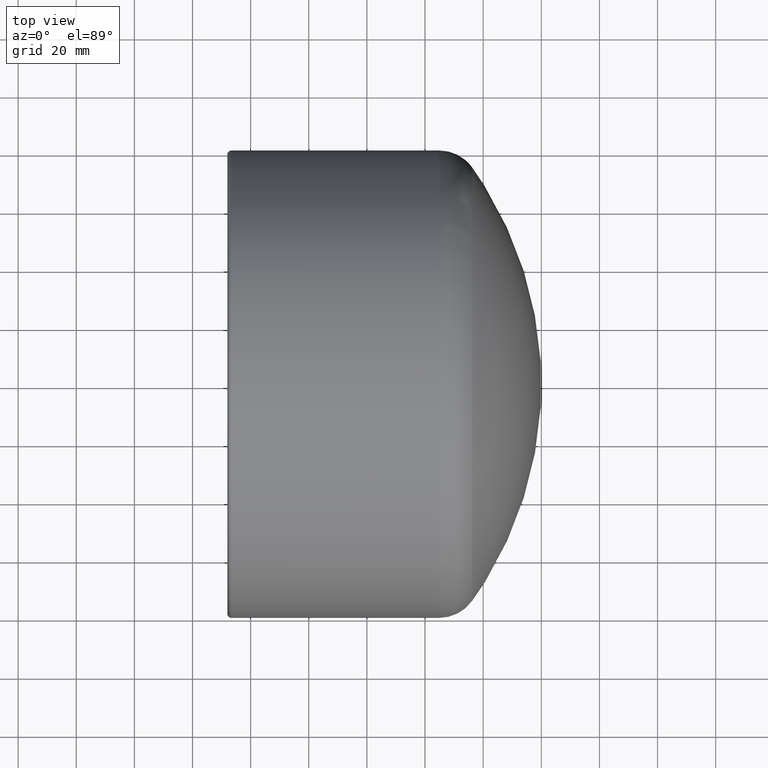
[diagram: clean part render]
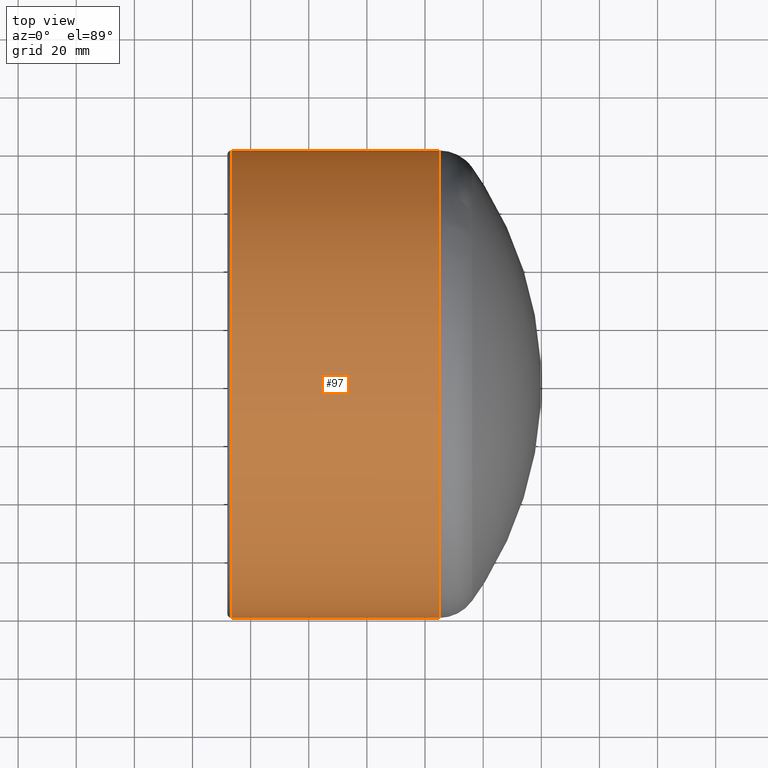
[diagram: same view with one face highlighted and labeled with its STEP entity id]
A machine part, top view. The second image highlights one B-rep face of the part: STEP entity #97.
In plain terms, the highlighted cylindrical surface (bore or boss wall) has radius 80.5 mm, axis along (1, 0, 0).
Its self-contained STEP definition (entity closure, byte-faithful):
#19=CYLINDRICAL_SURFACE('',#110,80.5);
#22=FACE_BOUND('',#40,.T.);
#29=FACE_OUTER_BOUND('',#39,.T.);
#39=EDGE_LOOP('',(#79));
#40=EDGE_LOOP('',(#80));
#53=CIRCLE('',#108,80.5);
#55=CIRCLE('',#111,80.5);
#61=VERTEX_POINT('',#162);
#63=VERTEX_POINT('',#167);
#69=EDGE_CURVE('',#61,#61,#53,.T.);
#71=EDGE_CURVE('',#63,#63,#55,.T.);
#79=ORIENTED_EDGE('',*,*,#71,.F.);
#80=ORIENTED_EDGE('',*,*,#69,.F.);
#97=ADVANCED_FACE('',(#29,#22),#19,.T.);
#108=AXIS2_PLACEMENT_3D('',#163,#128,#129);
#110=AXIS2_PLACEMENT_3D('',#166,#132,#133);
#111=AXIS2_PLACEMENT_3D('',#168,#134,#135);
#128=DIRECTION('center_axis',(1.,1.22659912418785E-16,0.));
#129=DIRECTION('ref_axis',(1.24124313312129E-16,-1.,1.83697019872103E-16));
#132=DIRECTION('center_axis',(1.,1.22659912418785E-16,0.));
#133=DIRECTION('ref_axis',(-1.10332722944115E-16,1.,0.));
#134=DIRECTION('center_axis',(-1.,-1.22659912418785E-16,0.));
#135=DIRECTION('ref_axis',(1.24124313312129E-16,-1.,1.83697019872103E-16));
#162=CARTESIAN_POINT('',(-35.1774686290501,80.5,-4.9292033665681E-15));
#163=CARTESIAN_POINT('Origin',(-35.1774686290501,-4.31486522115384E-15,
0.));
#166=CARTESIAN_POINT('Origin',(-68.1,-8.35314003571925E-15,0.));
#167=CARTESIAN_POINT('',(-106.6,80.5,-2.46460168328405E-14));
#168=CARTESIAN_POINT('Origin',(-106.6,-1.30755466638425E-14,0.));